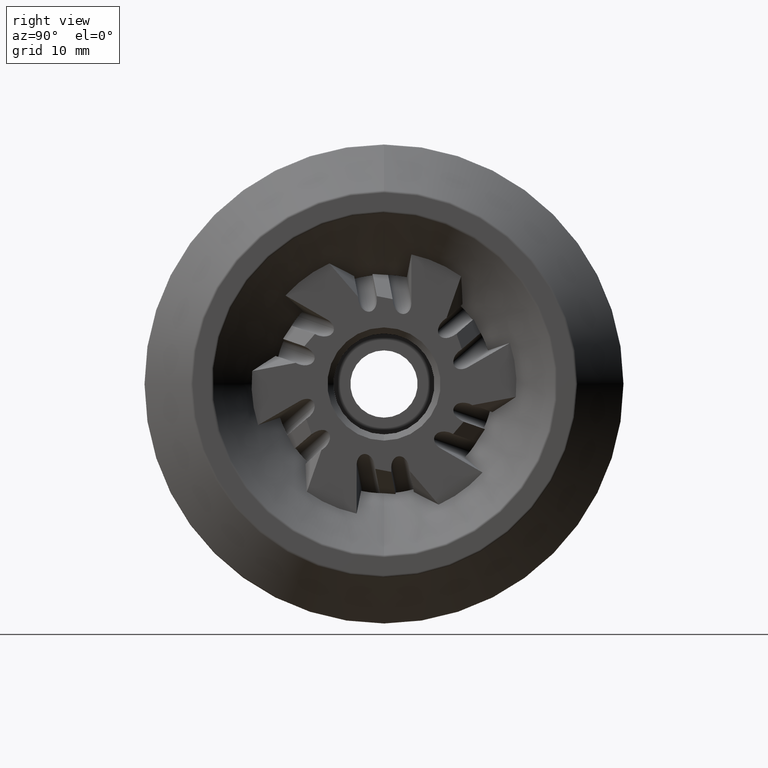
[diagram: clean part render]
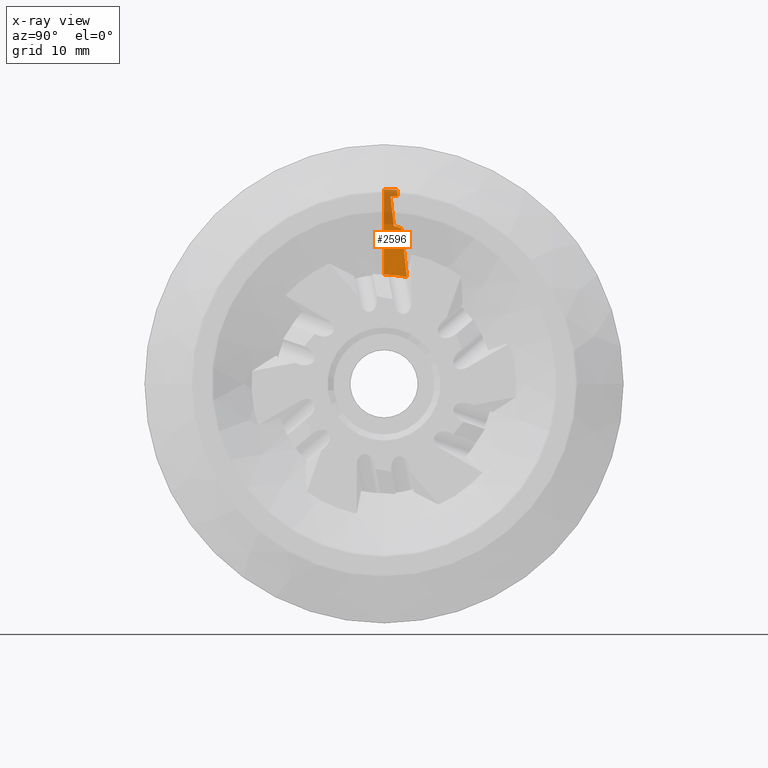
[diagram: x-ray — body ghosted, one internal face saturated and labeled with its STEP entity id]
A machine part, right view, then the same camera in x-ray: the body is ghosted and one INTERNAL B-rep face — a face not visible from any outside direction — is saturated and labeled: STEP entity #2596.
In plain terms, the highlighted conical surface has half-angle 59.621 deg.
Its self-contained STEP definition (entity closure, byte-faithful):
#168 = CARTESIAN_POINT ( 'NONE',  ( -13.42290814401782800, 2.017431220065624100, 25.69246762070788700 ) ) ;
#174 = CARTESIAN_POINT ( 'NONE',  ( -8.788071101318335500, 0.0000000000000000000, 17.86149384274298800 ) ) ;
#185 = CARTESIAN_POINT ( 'NONE',  ( -13.49600125109743100, 1.604317388753184700, 25.84304363667442300 ) ) ;
#186 = DIRECTION ( 'NONE',  ( -0.5057136708731446700, 0.0000000000000000000, 0.8627013869769821800 ) ) ;
#187 = CARTESIAN_POINT ( 'NONE',  ( -13.36299800475730500, 2.436260079989021500, 25.55374188544371700 ) ) ;
#188 = CARTESIAN_POINT ( 'NONE',  ( -13.31771933398080100, 2.861431916862227500, 25.42816850031822200 ) ) ;
#190 = CARTESIAN_POINT ( 'NONE',  ( -16.57732082415612500, 2.227829571536271000, 31.06953168466582200 ) ) ;
#195 = CARTESIAN_POINT ( 'NONE',  ( -16.38840215055669000, 2.264551641712414300, 30.74367564404109700 ) ) ;
#203 = CARTESIAN_POINT ( 'NONE',  ( -16.76631657828225400, 2.191092518423523000, 31.39534189699168800 ) ) ;
#204 = CARTESIAN_POINT ( 'NONE',  ( -16.95538266529305800, 2.154341793982910600, 31.72111029283555100 ) ) ;
#237 = CARTESIAN_POINT ( 'NONE',  ( -16.38840215055669000, 2.264551641712414300, 30.74367564404109700 ) ) ;
#238 = CARTESIAN_POINT ( 'NONE',  ( -16.34906986241956900, 1.864167944261703800, 30.70588847618940800 ) ) ;
#251 = CARTESIAN_POINT ( 'NONE',  ( -16.31258595485416800, 1.463770095126381700, 30.66530256027109400 ) ) ;
#252 = CARTESIAN_POINT ( 'NONE',  ( -16.27899674569598400, 1.063357864184319100, 30.62187238553038800 ) ) ;
#265 = CARTESIAN_POINT ( 'NONE',  ( -13.31771933398080100, 2.861431916862227500, 25.42816850031822200 ) ) ;
#397 = VERTEX_POINT ( 'NONE', #265 ) ;
#1128 = FACE_OUTER_BOUND ( 'NONE', #9838, .T. ) ;
#1131 = CONICAL_SURFACE ( 'NONE', #5879, 17.86149384274298800, 1.040587310528580100 ) ;
#1715 = CARTESIAN_POINT ( 'NONE',  ( -8.788071101318335500, 0.0000000000000000000, 17.86149384274298800 ) ) ;
#1856 = VERTEX_POINT ( 'NONE', #1715 ) ;
#2596 = ADVANCED_FACE ( 'NONE', ( #1128 ), #1131, .F. ) ;
#3122 = VERTEX_POINT ( 'NONE', #7853 ) ;
#3214 = VERTEX_POINT ( 'NONE', #7880 ) ;
#3218 = VERTEX_POINT ( 'NONE', #7879 ) ;
#3366 = AXIS2_PLACEMENT_3D ( 'NONE', #4764, #4765, #4766 ) ;
#3376 = AXIS2_PLACEMENT_3D ( 'NONE', #10668, #10669, #10670 ) ;
#4627 = CARTESIAN_POINT ( 'NONE',  ( -10.28001326532808700, 3.451902161556374500, 20.13014911696878400 ) ) ;
#4646 = CARTESIAN_POINT ( 'NONE',  ( -8.788071101318339000, 3.741906340612142700, 17.46513954231206300 ) ) ;
#4654 = CARTESIAN_POINT ( 'NONE',  ( -11.79526221075511600, 3.157367603123711200, 22.78130162305149400 ) ) ;
#4655 = CARTESIAN_POINT ( 'NONE',  ( -13.31771933398080100, 2.861431916862227500, 25.42816850031822200 ) ) ;
#4764 = CARTESIAN_POINT ( 'NONE',  ( -16.95538266529305100, 0.0000000000000000000, 0.0000000000000000000 ) ) ;
#4765 = DIRECTION ( 'NONE',  ( 1.000000000000000000, -0.0000000000000000000, -0.0000000000000000000 ) ) ;
#4766 = DIRECTION ( 'NONE',  ( 0.0000000000000000000, 0.0000000000000000000, -1.000000000000000000 ) ) ;
#4890 = CARTESIAN_POINT ( 'NONE',  ( -16.27899674569598400, 1.063357864184319100, 30.62187238553038800 ) ) ;
#4891 = CARTESIAN_POINT ( 'NONE',  ( -15.34994371990147900, 1.243947478543561600, 29.02976634626598700 ) ) ;
#4895 = CARTESIAN_POINT ( 'NONE',  ( -14.42202727343024200, 1.424316164262586800, 27.43697495222382100 ) ) ;
#5412 = CIRCLE ( 'NONE', #3376, 17.86149384274298800 ) ;
#5419 = CIRCLE ( 'NONE', #3366, 31.79418227876822200 ) ;
#5439 = LINE ( 'NONE', #174, #5440 ) ;
#5440 = VECTOR ( 'NONE', #186, 1000.000000000000000 ) ;
#5665 = CARTESIAN_POINT ( 'NONE',  ( -8.788071101318335500, 0.0000000000000000000, 0.0000000000000000000 ) ) ;
#5666 = DIRECTION ( 'NONE',  ( -1.000000000000000000, 0.0000000000000000000, 0.0000000000000000000 ) ) ;
#5674 = DIRECTION ( 'NONE',  ( 0.0000000000000000000, 0.0000000000000000000, 1.000000000000000000 ) ) ;
#5879 = AXIS2_PLACEMENT_3D ( 'NONE', #5665, #5666, #5674 ) ;
#6609 = B_SPLINE_CURVE_WITH_KNOTS ( 'NONE', 3,
 ( #237, #238, #251, #252 ),
 .UNSPECIFIED., .F., .F.,
 ( 4, 4 ),
 ( 0.001361922401596711800, 0.002574167354909803000 ),
 .UNSPECIFIED. ) ;
#6610 = B_SPLINE_CURVE_WITH_KNOTS ( 'NONE', 3,
 ( #4646, #4627, #4654, #4655 ),
 .UNSPECIFIED., .F., .F.,
 ( 4, 4 ),
 ( 4.112480294202909500E-007, 0.009203778324585061200 ),
 .UNSPECIFIED. ) ;
#6657 = B_SPLINE_CURVE_WITH_KNOTS ( 'NONE', 3,
 ( #4890, #4891, #4895, #10659 ),
 .UNSPECIFIED., .F., .F.,
 ( 4, 4 ),
 ( 0.001348451442909056700, 0.006904967884517630700 ),
 .UNSPECIFIED. ) ;
#6939 = B_SPLINE_CURVE_WITH_KNOTS ( 'NONE', 3,
 ( #185, #168, #187, #188 ),
 .UNSPECIFIED., .F., .F.,
 ( 4, 4 ),
 ( 0.0007894266534159590100, 0.002125174858103131600 ),
 .UNSPECIFIED. ) ;
#6940 = B_SPLINE_CURVE_WITH_KNOTS ( 'NONE', 3,
 ( #195, #190, #203, #204 ),
 .UNSPECIFIED., .F., .F.,
 ( 4, 4 ),
 ( 0.01537139339034320800, 0.01650671432935344600 ),
 .UNSPECIFIED. ) ;
#7853 = CARTESIAN_POINT ( 'NONE',  ( -8.788071101318339000, 3.741906340612142700, 17.46513954231206300 ) ) ;
#7879 = CARTESIAN_POINT ( 'NONE',  ( -16.38840215055669000, 2.264551641712414300, 30.74367564404109700 ) ) ;
#7880 = CARTESIAN_POINT ( 'NONE',  ( -16.95538266529305100, 0.0000000000000000000, 31.79418227876822200 ) ) ;
#8300 = EDGE_CURVE ( 'NONE', #9770, #397, #6939, .T. ) ;
#8301 = EDGE_CURVE ( 'NONE', #1856, #3214, #5439, .T. ) ;
#8305 = EDGE_CURVE ( 'NONE', #3218, #8614, #6940, .T. ) ;
#8316 = EDGE_CURVE ( 'NONE', #3218, #9767, #6609, .T. ) ;
#8321 = EDGE_CURVE ( 'NONE', #3122, #397, #6610, .T. ) ;
#8337 = EDGE_CURVE ( 'NONE', #8614, #3214, #5419, .T. ) ;
#8393 = EDGE_CURVE ( 'NONE', #9767, #9770, #6657, .T. ) ;
#8397 = EDGE_CURVE ( 'NONE', #3122, #1856, #5412, .T. ) ;
#8614 = VERTEX_POINT ( 'NONE', #10889 ) ;
#9767 = VERTEX_POINT ( 'NONE', #10897 ) ;
#9770 = VERTEX_POINT ( 'NONE', #10899 ) ;
#9838 = EDGE_LOOP ( 'NONE', ( #9842, #9843, #9844, #9845, #9846, #9847, #9848, #9849 ) ) ;
#9842 = ORIENTED_EDGE ( 'NONE', *, *, #8397, .T. ) ;
#9843 = ORIENTED_EDGE ( 'NONE', *, *, #8301, .T. ) ;
#9844 = ORIENTED_EDGE ( 'NONE', *, *, #8337, .F. ) ;
#9845 = ORIENTED_EDGE ( 'NONE', *, *, #8305, .F. ) ;
#9846 = ORIENTED_EDGE ( 'NONE', *, *, #8316, .T. ) ;
#9847 = ORIENTED_EDGE ( 'NONE', *, *, #8393, .T. ) ;
#9848 = ORIENTED_EDGE ( 'NONE', *, *, #8300, .T. ) ;
#9849 = ORIENTED_EDGE ( 'NONE', *, *, #8321, .F. ) ;
#10659 = CARTESIAN_POINT ( 'NONE',  ( -13.49600125109743100, 1.604317388753184700, 25.84304363667442300 ) ) ;
#10668 = CARTESIAN_POINT ( 'NONE',  ( -8.788071101318335500, 0.0000000000000000000, 0.0000000000000000000 ) ) ;
#10669 = DIRECTION ( 'NONE',  ( 1.000000000000000000, -0.0000000000000000000, -0.0000000000000000000 ) ) ;
#10670 = DIRECTION ( 'NONE',  ( 0.0000000000000000000, 0.0000000000000000000, -1.000000000000000000 ) ) ;
#10889 = CARTESIAN_POINT ( 'NONE',  ( -16.95538266529305800, 2.154341793982910600, 31.72111029283555100 ) ) ;
#10897 = CARTESIAN_POINT ( 'NONE',  ( -16.27899674569598400, 1.063357864184319100, 30.62187238553038800 ) ) ;
#10899 = CARTESIAN_POINT ( 'NONE',  ( -13.49600125109743100, 1.604317388753184700, 25.84304363667442300 ) ) ;